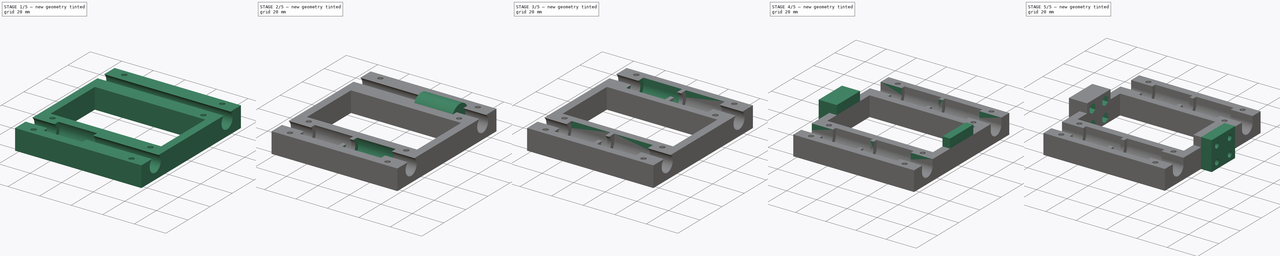
[diagram: build sequence overview — one tinted view per stage of 5, left to right]
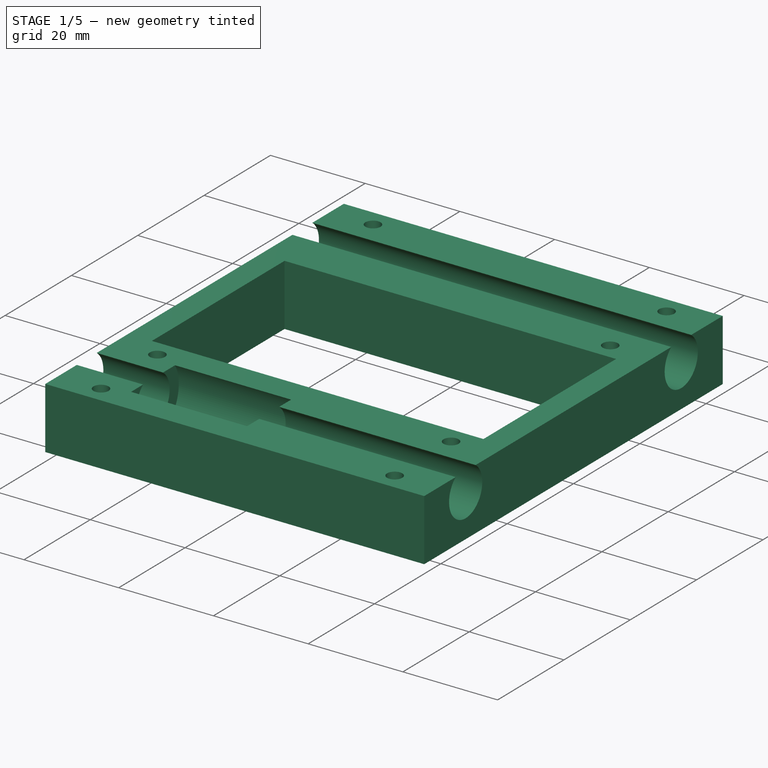
[diagram: stage 1 of 5 — iso view after this stage's code; geometry added in this stage tinted green]
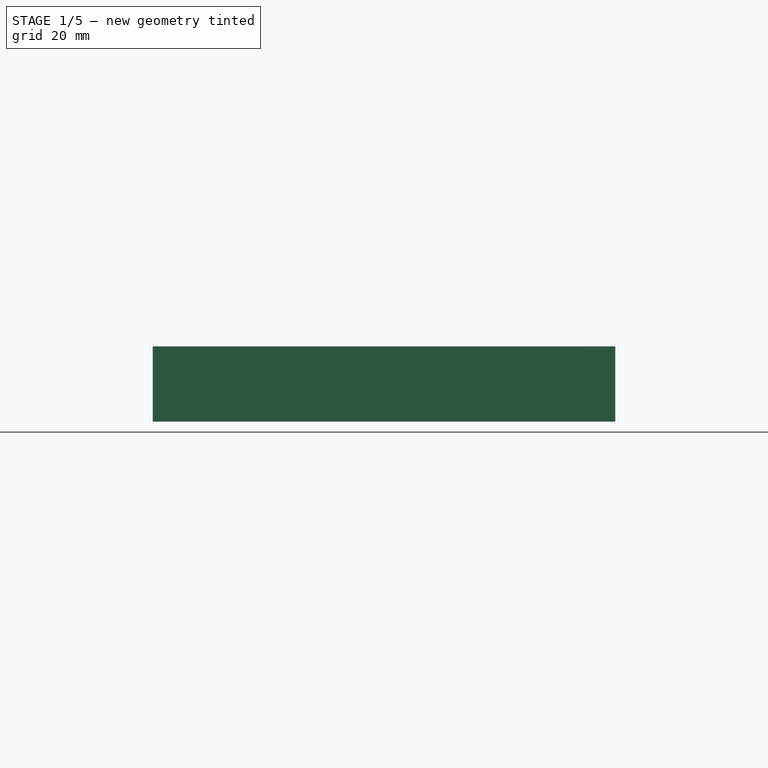
[diagram: stage 1 of 5 — front view after this stage's code; geometry added in this stage tinted green]
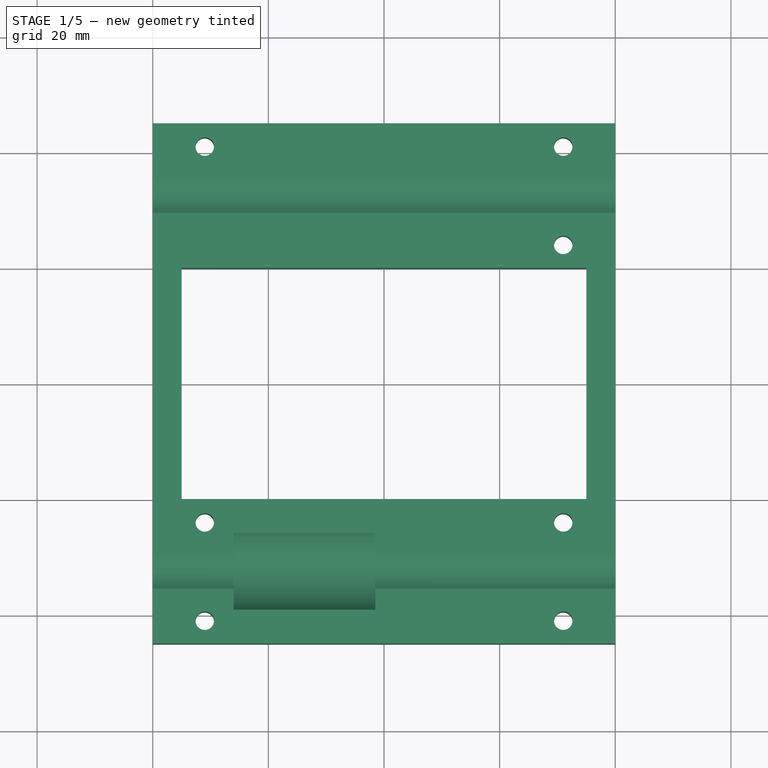
[diagram: stage 1 of 5 — top view after this stage's code; geometry added in this stage tinted green]
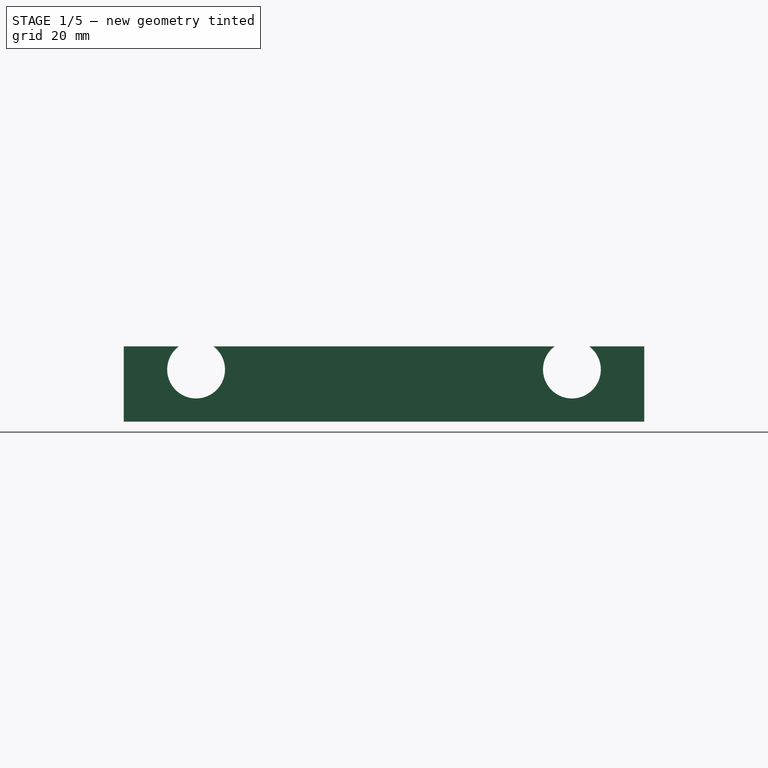
[diagram: stage 1 of 5 — right view after this stage's code; geometry added in this stage tinted green]
FCSTD DOCUMENT  (FreeCAD 0.15R4671 (Git))
Label: carriage-down
License: All rights reserved
LicenseURL: http://es.wikipedia.org/wiki/Todos_los_derechos_reservados
objects: Sketcher::SketchObject×10, PartDesign::Pocket×6, PartDesign::Pad×4, Part::Cylinder×4, Part::Cut×4, Part::Feature×3
note: 41 computed .brp shape members not serialized (recipe doc carries the construction recipe); baked Part::Feature solids carry a one-line shape summary decoded from their .brp

FEATURE [Sketcher::SketchObject] Sketch
  Placement = pos=(0,0,0) rot=(1,0,0;3.14159rad)
  sketch-geometry (17):
    g0: LineSegment StartX=-40 StartY=45 StartZ=0 EndX=40 EndY=45 EndZ=0
    g1: LineSegment StartX=40 StartY=45 StartZ=0 EndX=40 EndY=-45 EndZ=0
    g2: LineSegment StartX=40 StartY=-45 StartZ=0 EndX=-40 EndY=-45 EndZ=0
    g3: LineSegment StartX=-40 StartY=-45 StartZ=0 EndX=-40 EndY=45 EndZ=0
    g4: LineSegment StartX=35 StartY=20 StartZ=0 EndX=-35 EndY=20 EndZ=0
    g5: LineSegment StartX=-35 StartY=20 StartZ=0 EndX=-35 EndY=-20 EndZ=0
    g6: LineSegment StartX=-35 StartY=-20 StartZ=0 EndX=35 EndY=-20 EndZ=0
    g7: LineSegment StartX=35 StartY=-20 StartZ=0 EndX=35 EndY=20 EndZ=0
    g8: Circle CenterX=31 CenterY=-23.9512 CenterZ=0 NormalX=0 NormalY=0 NormalZ=1 Radius=1.6
    g9: Circle CenterX=31 CenterY=-40.9512 CenterZ=0 NormalX=0 NormalY=0 NormalZ=1 Radius=1.6
    g10: Circle CenterX=-31 CenterY=-40.9512 CenterZ=0 NormalX=0 NormalY=0 NormalZ=1 Radius=1.6
    g11: Circle CenterX=-31 CenterY=24.0488 CenterZ=0 NormalX=0 NormalY=0 NormalZ=1 Radius=1.6
    g12: Circle CenterX=-31 CenterY=41.0488 CenterZ=0 NormalX=0 NormalY=0 NormalZ=1 Radius=1.6
    g13: Circle CenterX=31 CenterY=41.0488 CenterZ=0 NormalX=0 NormalY=0 NormalZ=1 Radius=1.6
    g14: Circle CenterX=31 CenterY=24.0488 CenterZ=0 NormalX=0 NormalY=0 NormalZ=1 Radius=1.6
    g15: LineSegment [constr] StartX=31 StartY=-40.9512 StartZ=0 EndX=31 EndY=41.0488 EndZ=0
    g16: LineSegment [constr] StartX=-31 StartY=-41.2933 StartZ=0 EndX=-31 EndY=41.0055 EndZ=0
  constraints (42):
    c: Coincident(g0,g1)
    c: Coincident(g1,g2)
    c: Coincident(g2,g3)
    c: Coincident(g3,g0)
    c: Horizontal(g0)
    c: Horizontal(g2)
    c: Vertical(g1)
    c: Vertical(g3)
    c: Coincident(g4,g5)
    c: Coincident(g5,g6)
    c: Coincident(g6,g7)
    c: Coincident(g7,g4)
    c: Horizontal(g4)
    c: Horizontal(g6)
    c: Vertical(g5)
    c: Vertical(g7)
    c: Symmetric(g0,g1,g-1)
    c: DistanceX(g0) = 80
    c: Symmetric(g6,g4,g-1)
    c: Radius(g8) = 1.6
    c: Distance(g4,g4) = 70
    c: Equal(g8,g9)
    c: Equal(g9,g10)
    c: Equal(g10,g11)
    c: Equal(g11,g14)
    c: Equal(g14,g13)
    c: Equal(g13,g12)
    c: Distance(g10,g9) = 62
    c: Symmetric(g10,g9,g-2)
    c: Coincident(g15,g9)
    c: Coincident(g15,g13)
    c: Vertical(g15)
    c: PointOnObject(g8,g15)
    c: PointOnObject(g14,g15)
    c: PointOnObject(g12,g16)
    c: Symmetric(g11,g14,g-2)
    c: Distance(g14,g8) = 48
    c: Distance(g8,g9) = 17
    c: Distance(g14,g13) = 17
    c: Symmetric(g12,g13,g-2)
    c: Vertical(g16)
    c: DistanceY(g5) = -40
FEATURE [PartDesign::Pad] Pad
  Length = 13
  Length2 = 100
  Placement = pos=(0,0,0) rot=(1,0,0;3.14159rad)
  Sketch = -> Sketch
  Type = 0
FEATURE [Sketcher::SketchObject] Sketch001
  Placement = pos=(-40,0,0) rot=(0.57735,0.57735,-0.57735;4.18879rad)
  Support = -> Pad [Face4]
  sketch-geometry (2):
    g0: Circle CenterX=-32.5 CenterY=4 CenterZ=0 NormalX=0 NormalY=0 NormalZ=1 Radius=5
    g1: Circle CenterX=32.5 CenterY=4 CenterZ=0 NormalX=0 NormalY=0 NormalZ=1 Radius=5
  constraints (5):
    c: Equal(g0,g1)
    c: Radius(g0) = 5
    c: Distance(g0,g1) = 65
    c: Symmetric(g0,g1,g-2)
    c: DistanceY(g-1,g0) = 4
FEATURE [PartDesign::Pocket] Pocket
  Length = 5
  Placement = pos=(0,0,0) rot=(1,0,0;3.14159rad)
  Sketch = -> Sketch001
  Type = 1
FEATURE [Part::Cylinder] Cylinder  label="Cilindro"
  Angle = 360
  Height = 24.5
  Placement = pos=(-26,-32.5,-4) rot=(0,1,0;1.5708rad)
  Radius = 7.75
FEATURE [Part::Feature] Cut  label="carriage-sup"
  shape: bbox 70 x 90 x 3 mm, 67 faces (baked)
FEATURE [Part::Cut] Cut001
  Base = -> Pocket
  Tool = -> Cylinder
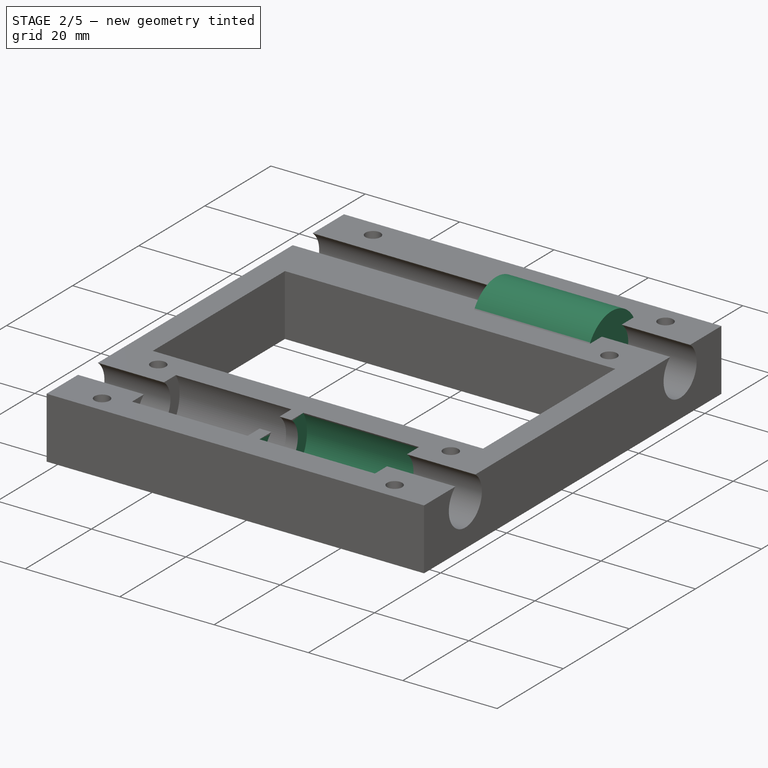
[diagram: stage 2 of 5 — iso view after this stage's code; geometry added in this stage tinted green]
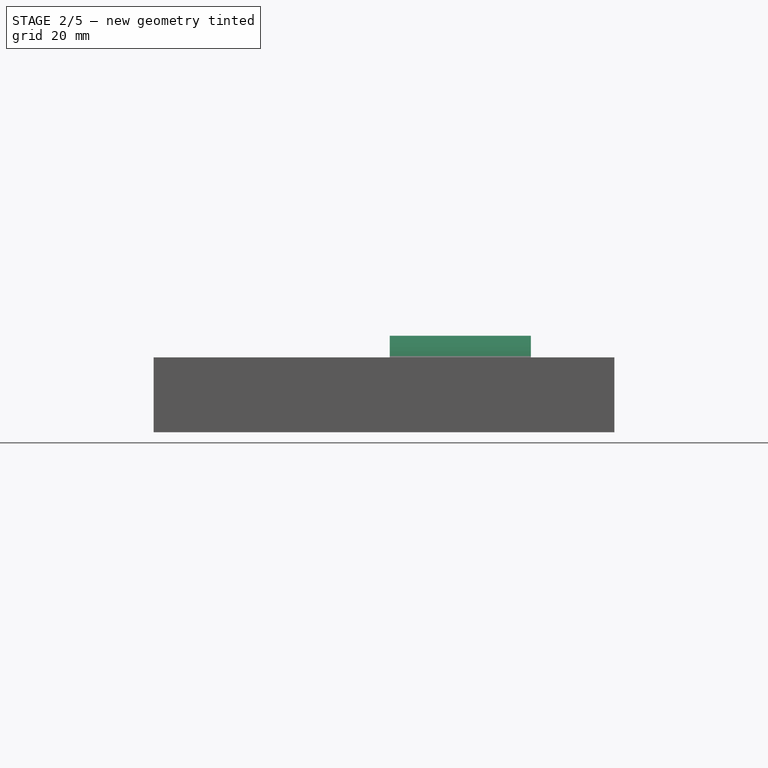
[diagram: stage 2 of 5 — front view after this stage's code; geometry added in this stage tinted green]
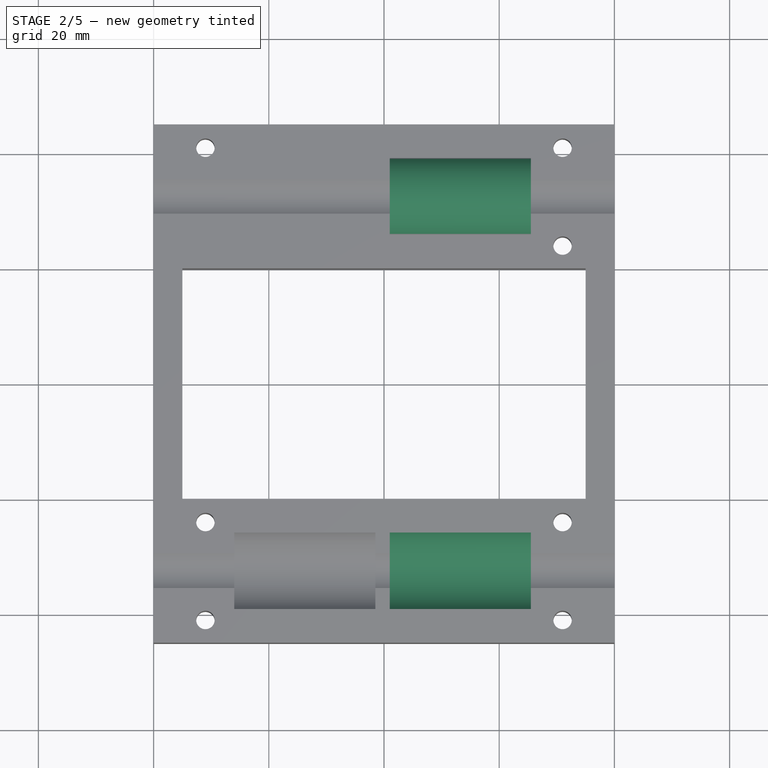
[diagram: stage 2 of 5 — top view after this stage's code; geometry added in this stage tinted green]
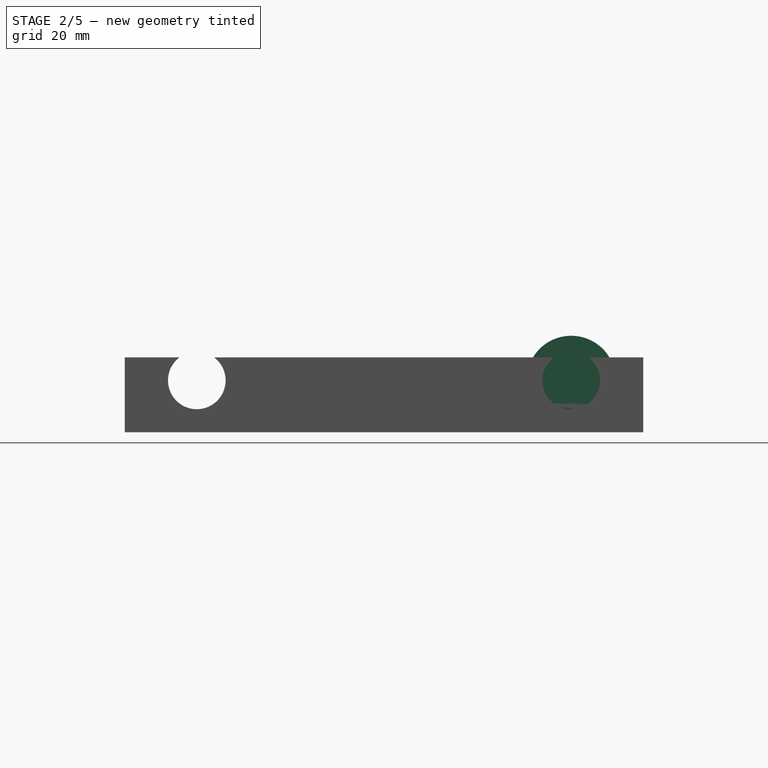
[diagram: stage 2 of 5 — right view after this stage's code; geometry added in this stage tinted green]
FEATURE [Part::Cylinder] Cylinder001  label="Cilindro001"
  Angle = 360
  Height = 24.5
  Placement = pos=(1,-32.5,-4) rot=(0,1,0;1.5708rad)
  Radius = 7.75
FEATURE [Part::Cylinder] Cylinder003  label="Cilindro003"
  Angle = 360
  Height = 24.5
  Placement = pos=(1,32.5,-4) rot=(0,1,0;1.5708rad)
  Radius = 7.75
FEATURE [Part::Cut] Cut002
  Base = -> Cut001
  Tool = -> Cylinder001
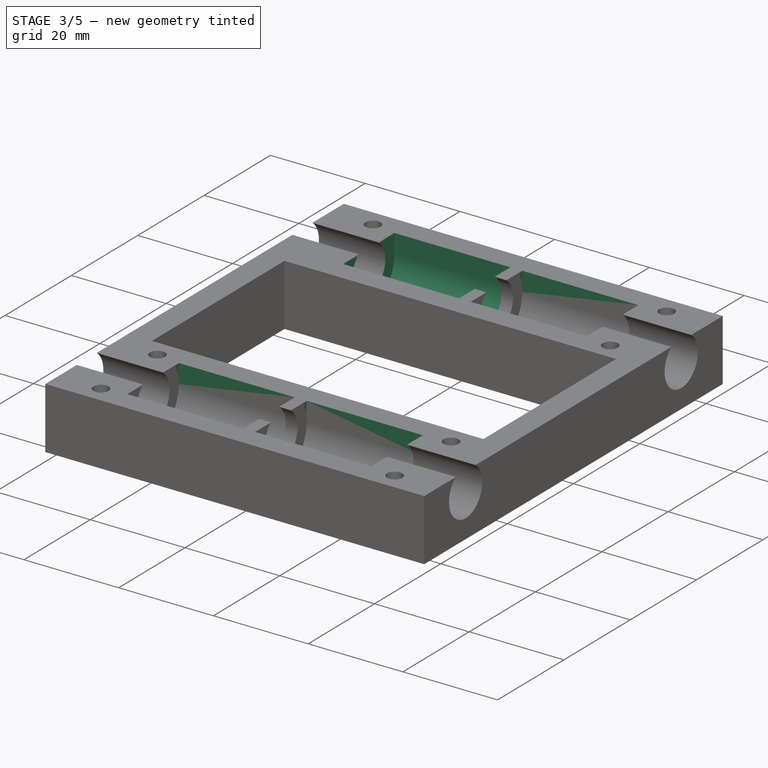
[diagram: stage 3 of 5 — iso view after this stage's code; geometry added in this stage tinted green]
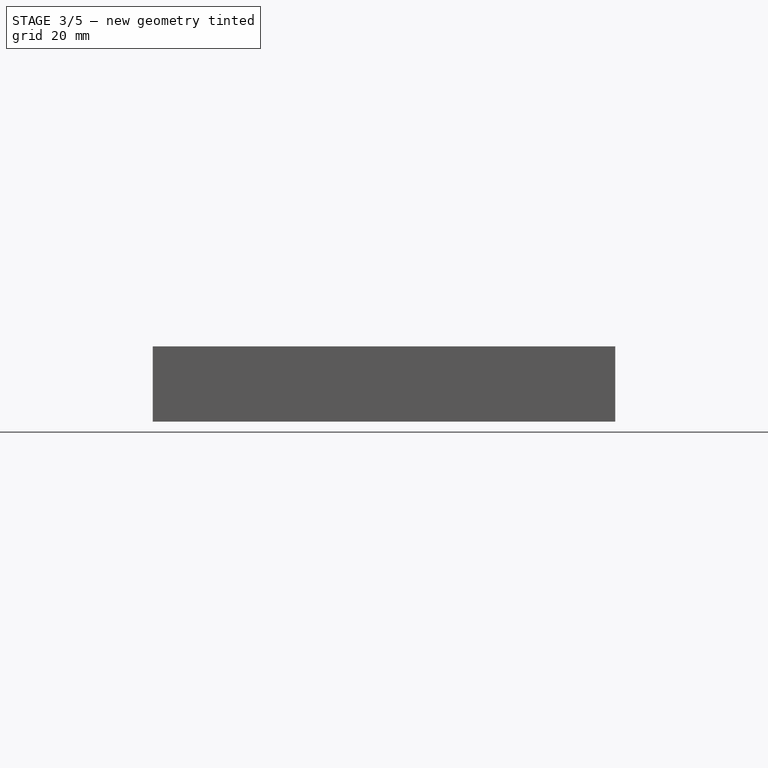
[diagram: stage 3 of 5 — front view after this stage's code; geometry added in this stage tinted green]
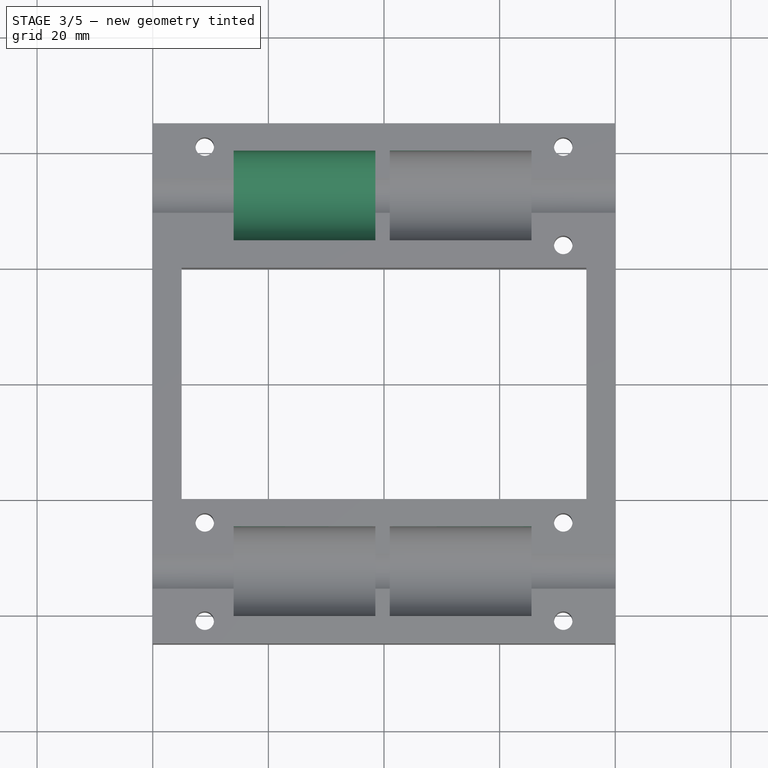
[diagram: stage 3 of 5 — top view after this stage's code; geometry added in this stage tinted green]
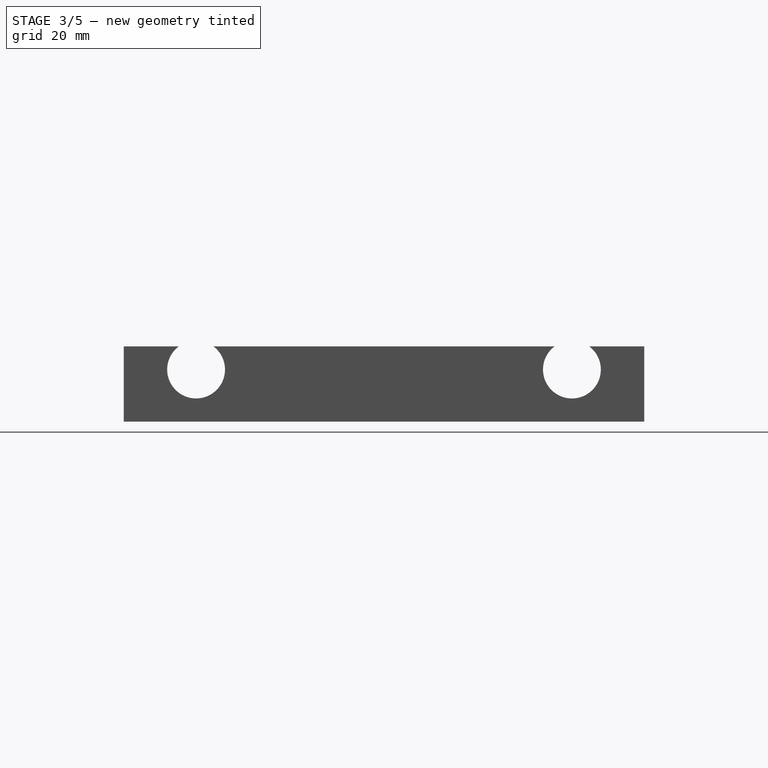
[diagram: stage 3 of 5 — right view after this stage's code; geometry added in this stage tinted green]
FEATURE [Part::Cylinder] Cylinder002  label="Cilindro002"
  Angle = 360
  Height = 24.5
  Placement = pos=(-26,32.5,-4) rot=(0,1,0;1.5708rad)
  Radius = 7.75
FEATURE [Part::Cut] Cut003
  Base = -> Cut002
  Tool = -> Cylinder003
FEATURE [Part::Cut] Cut004
  Base = -> Cut003
  Tool = -> Cylinder002
FEATURE [Sketcher::SketchObject] Sketch002
  ExternalGeometry = -> [Cut004]
  Support = -> Cut004 [Face9]
  sketch-geometry (16):
    g0: LineSegment StartX=-26 StartY=40.25 StartZ=0 EndX=-1.5 EndY=40.25 EndZ=0
    g1: LineSegment StartX=-1.5 StartY=40.25 StartZ=0 EndX=-1.5 EndY=24.75 EndZ=0
    g2: LineSegment StartX=-1.5 StartY=24.75 StartZ=0 EndX=-26 EndY=24.75 EndZ=0
    g3: LineSegment StartX=-26 StartY=24.75 StartZ=0 EndX=-26 EndY=40.25 EndZ=0
    g4: LineSegment StartX=1 StartY=40.25 StartZ=0 EndX=25.5 EndY=40.25 EndZ=0
    g5: LineSegment StartX=25.5 StartY=40.25 StartZ=0 EndX=25.5 EndY=24.75 EndZ=0
    g6: LineSegment StartX=25.5 StartY=24.75 StartZ=0 EndX=1 EndY=24.75 EndZ=0
    g7: LineSegment StartX=1 StartY=24.75 StartZ=0 EndX=1 EndY=40.25 EndZ=0
    g8: LineSegment StartX=-26 StartY=-24.75 StartZ=0 EndX=-1.5 EndY=-24.75 EndZ=0
    g9: LineSegment StartX=-1.5 StartY=-24.75 StartZ=0 EndX=-1.5 EndY=-40.25 EndZ=0
    g10: LineSegment StartX=-1.5 StartY=-40.25 StartZ=0 EndX=-26 EndY=-40.25 EndZ=0
    g11: LineSegment StartX=-26 StartY=-40.25 StartZ=0 EndX=-26 EndY=-24.75 EndZ=0
    g12: LineSegment StartX=1 StartY=-24.75 StartZ=0 EndX=25.5 EndY=-24.75 EndZ=0
    g13: LineSegment StartX=25.5 StartY=-24.75 StartZ=0 EndX=25.5 EndY=-40.25 EndZ=0
    g14: LineSegment StartX=25.5 StartY=-40.25 StartZ=0 EndX=1 EndY=-40.25 EndZ=0
    g15: LineSegment StartX=1 StartY=-40.25 StartZ=0 EndX=1 EndY=-24.75 EndZ=0
  constraints (44):
    c: Coincident(g0,g1)
    c: Coincident(g1,g2)
    c: Coincident(g2,g3)
    c: Coincident(g3,g0)
    c: Horizontal(g0)
    c: Horizontal(g2)
    c: Vertical(g1)
    c: Vertical(g3)
    c: DistanceY(g3) = 15.5
    c: Symmetric(g0,g2,g-3)
    c: DistanceX(g0) = 24.5
    c: Coincident(g4,g5)
    c: Coincident(g5,g6)
    c: Coincident(g6,g7)
    c: Coincident(g7,g4)
    c: Horizontal(g4)
    c: Horizontal(g6)
    c: Vertical(g5)
    c: Vertical(g7)
    c: Coincident(g8,g9)
    c: Coincident(g9,g10)
    c: Coincident(g10,g11)
    c: Coincident(g11,g8)
    c: Horizontal(g8)
    c: Horizontal(g10)
    c: Vertical(g9)
    c: Vertical(g11)
    c: Coincident(g12,g13)
    c: Coincident(g13,g14)
    c: Coincident(g14,g15)
    c: Coincident(g15,g12)
    c: Horizontal(g12)
    c: Horizontal(g14)
    c: Vertical(g13)
    c: Vertical(g15)
    c: Equal(g0,g4)
    c: Equal(g4,g8)
    c: Equal(g8,g12)
    c: Equal(g1,g7)
    c: Equal(g7,g9)
    c: Equal(g9,g15)
    c: Symmetric(g8,g10,g-5)
    c: Symmetric(g12,g14,g-6)
    c: Symmetric(g4,g6,g-4)
FEATURE [PartDesign::Pocket] Pocket001
  Length = 4
  Sketch = -> Sketch002
  Type = 0
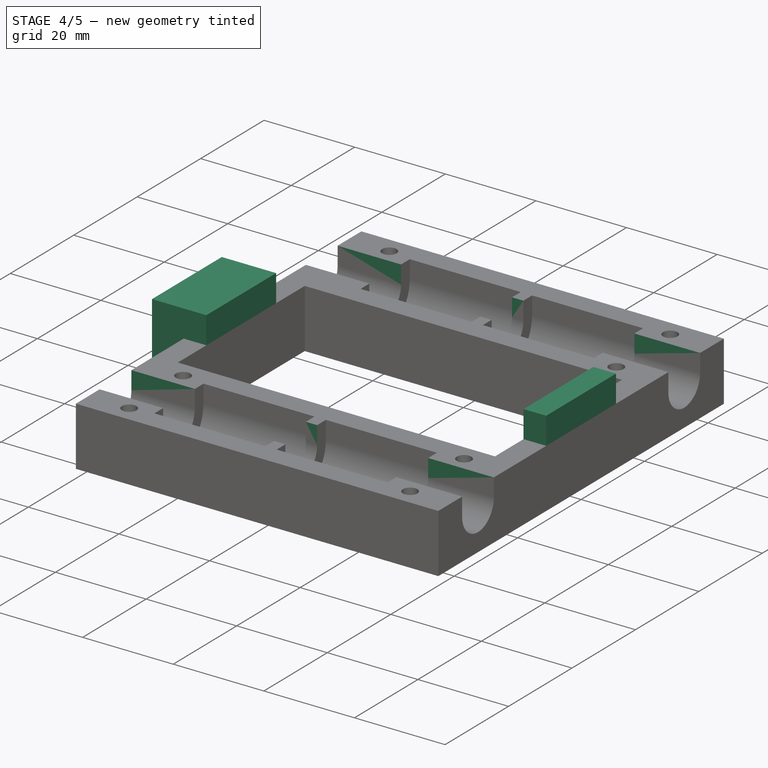
[diagram: stage 4 of 5 — iso view after this stage's code; geometry added in this stage tinted green]
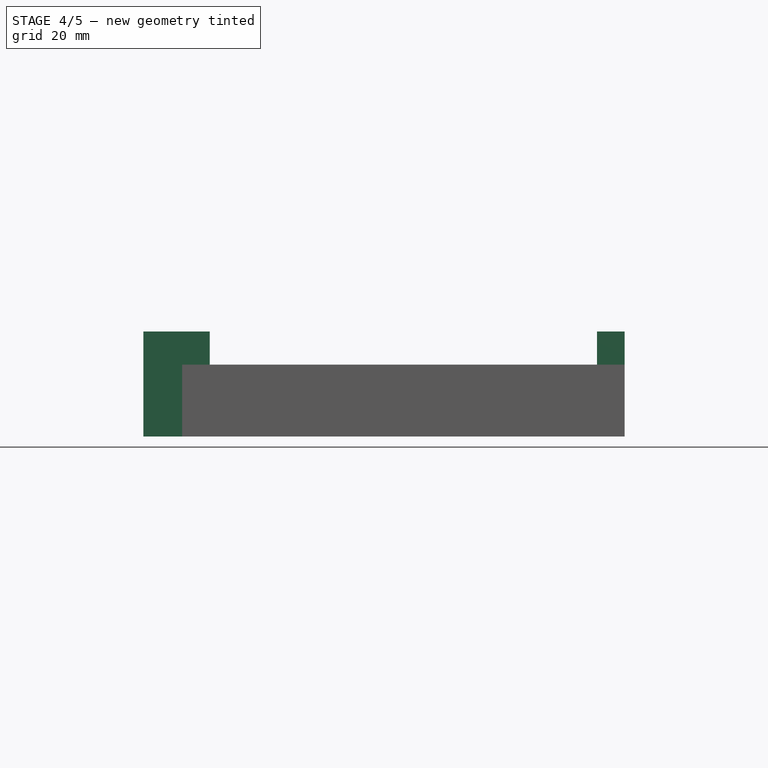
[diagram: stage 4 of 5 — front view after this stage's code; geometry added in this stage tinted green]
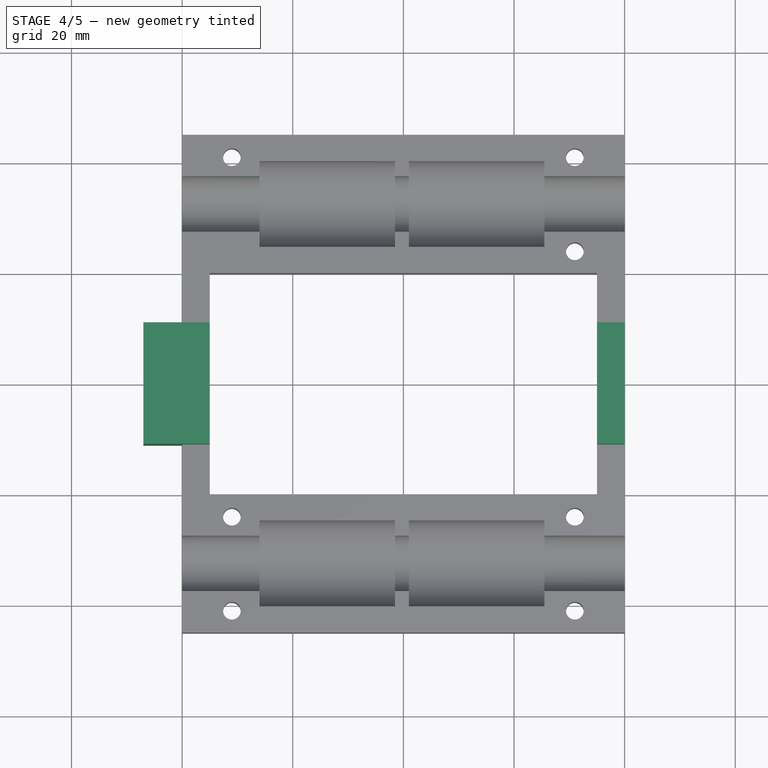
[diagram: stage 4 of 5 — top view after this stage's code; geometry added in this stage tinted green]
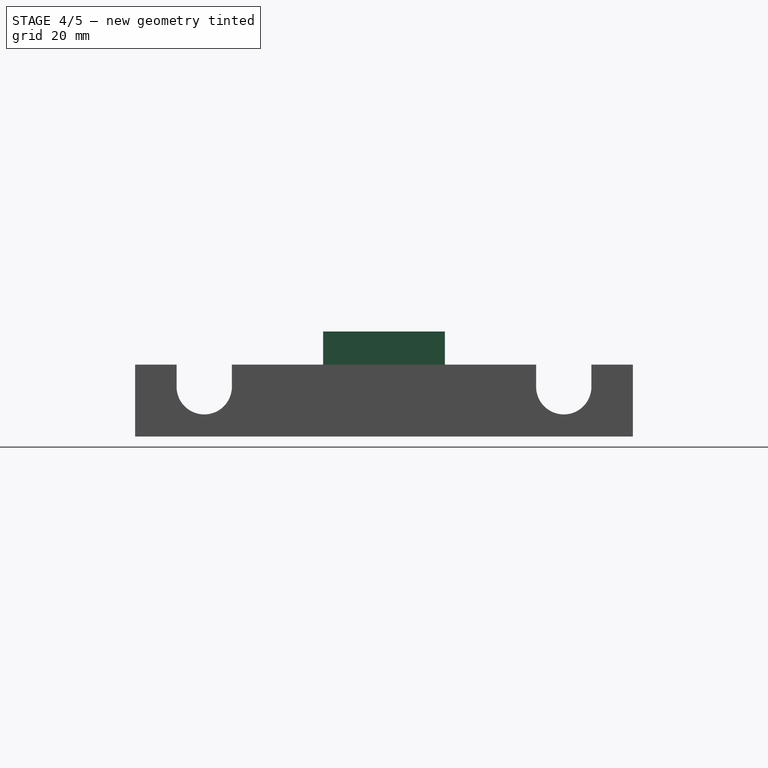
[diagram: stage 4 of 5 — right view after this stage's code; geometry added in this stage tinted green]
FEATURE [Sketcher::SketchObject] Sketch003
  ExternalGeometry = -> [Pocket001]
  Support = -> Pocket001 [Face9]
  sketch-geometry (10):
    g0: LineSegment [constr] StartX=-26 StartY=32.5 StartZ=0 EndX=-40 EndY=32.5 EndZ=0
    g1: LineSegment [constr] StartX=-26 StartY=-32.5 StartZ=0 EndX=-40 EndY=-32.5 EndZ=0
    g2: LineSegment StartX=-40 StartY=37.5 StartZ=0 EndX=40 EndY=37.5 EndZ=0
    g3: LineSegment StartX=40 StartY=37.5 StartZ=0 EndX=40 EndY=27.5 EndZ=0
    g4: LineSegment StartX=40 StartY=27.5 StartZ=0 EndX=-40 EndY=27.5 EndZ=0
    g5: LineSegment StartX=-40 StartY=27.5 StartZ=0 EndX=-40 EndY=37.5 EndZ=0
    g6: LineSegment StartX=-40 StartY=-27.5 StartZ=0 EndX=40 EndY=-27.5 EndZ=0
    g7: LineSegment StartX=40 StartY=-27.5 StartZ=0 EndX=40 EndY=-37.5 EndZ=0
    g8: LineSegment StartX=40 StartY=-37.5 StartZ=0 EndX=-40 EndY=-37.5 EndZ=0
    g9: LineSegment StartX=-40 StartY=-37.5 StartZ=0 EndX=-40 EndY=-27.5 EndZ=0
  constraints (26):
    c: Coincident(g0,g-3)
    c: Horizontal(g0)
    c: Horizontal(g1)
    c: PointOnObject(g-4,g1)
    c: Coincident(g2,g3)
    c: Coincident(g3,g4)
    c: Coincident(g4,g5)
    c: Coincident(g5,g2)
    c: Horizontal(g2)
    c: Horizontal(g4)
    c: Vertical(g3)
    c: Vertical(g5)
    c: Coincident(g6,g7)
    c: Coincident(g7,g8)
    c: Coincident(g8,g9)
    c: Coincident(g9,g6)
    c: Horizontal(g6)
    c: Horizontal(g8)
    c: Vertical(g7)
    c: Vertical(g9)
    c: Symmetric(g4,g2,g0)
    c: DistanceY(g5) = 10
    c: DistanceX(g2) = 80
    c: Equal(g4,g6)
    c: Equal(g3,g7)
    c: Symmetric(g6,g8,g1)
FEATURE [PartDesign::Pocket] Pocket002
  Length = 4
  Sketch = -> Sketch003
  Type = 0
FEATURE [Part::Feature] Part__Feature  label="belt-clamp"
  Placement = pos=(-17,0.00078681,155) rot=(1,0,0;3.14159rad)
  shape: bbox 15 x 22 x 10 mm, 58 faces (baked)
FEATURE [Part::Feature] Part__Feature001  label="belt-clamp001"
  Placement = pos=(-17,-0.00078681,-163) rot=(0,0,1;0rad)
  shape: bbox 15 x 22 x 10 mm, 58 faces (baked)
FEATURE [Sketcher::SketchObject] Sketch004
  ExternalGeometry = -> [Pocket002]
  Support = -> Pocket002 [Face10]
  sketch-geometry (8):
    g0: LineSegment StartX=-40 StartY=10.9964 StartZ=0 EndX=-35 EndY=10.9964 EndZ=0
    g1: LineSegment StartX=-35 StartY=10.9964 StartZ=0 EndX=-35 EndY=-11 EndZ=0
    g2: LineSegment StartX=-35 StartY=-11 StartZ=0 EndX=-40 EndY=-11 EndZ=0
    g3: LineSegment StartX=-40 StartY=-11 StartZ=0 EndX=-40 EndY=10.9964 EndZ=0
    g4: LineSegment StartX=35 StartY=10.9964 StartZ=0 EndX=40 EndY=10.9964 EndZ=0
    g5: LineSegment StartX=40 StartY=10.9964 StartZ=0 EndX=40 EndY=-11 EndZ=0
    g6: LineSegment StartX=40 StartY=-11 StartZ=0 EndX=35 EndY=-11 EndZ=0
    g7: LineSegment StartX=35 StartY=-11 StartZ=0 EndX=35 EndY=10.9964 EndZ=0
  constraints (21):
    c: Coincident(g0,g1)
    c: Coincident(g1,g2)
    c: Coincident(g2,g3)
    c: Coincident(g3,g0)
    c: Horizontal(g0)
    c: Horizontal(g2)
    c: Vertical(g1)
    c: Vertical(g3)
    c: PointOnObject(g0,g-4)
    c: PointOnObject(g1,g-3)
    c: Coincident(g4,g5)
    c: Coincident(g5,g6)
    c: Coincident(g6,g7)
    c: Coincident(g7,g4)
    c: Horizontal(g4)
    c: Horizontal(g6)
    c: Vertical(g5)
    c: Vertical(g7)
    c: PointOnObject(g5,g-6)
    c: Symmetric(g0,g4,g-2)
    c: Symmetric(g6,g1,g-2)
FEATURE [PartDesign::Pad] Pad001
  Length = 6
  Length2 = 100
  Sketch = -> Sketch004
  Type = 0
FEATURE [Sketcher::SketchObject] Sketch005
  ExternalGeometry = -> [Pad001]
  Placement = pos=(-40,0,0) rot=(0.57735,-0.57735,-0.57735;2.0944rad)
  Support = -> Pad001 [Face2]
  sketch-geometry (4):
    g0: LineSegment StartX=11 StartY=6 StartZ=0 EndX=-10.9964 EndY=6 EndZ=0
    g1: LineSegment StartX=-10.9964 StartY=6 StartZ=0 EndX=-10.9964 EndY=-13 EndZ=0
    g2: LineSegment StartX=-10.9964 StartY=-13 StartZ=0 EndX=11 EndY=-13 EndZ=0
    g3: LineSegment StartX=11 StartY=-13 StartZ=0 EndX=11 EndY=6 EndZ=0
  constraints (10):
    c: Coincident(g0,g1)
    c: Coincident(g1,g2)
    c: Coincident(g2,g3)
    c: Coincident(g3,g0)
    c: Horizontal(g0)
    c: Horizontal(g2)
    c: Vertical(g1)
    c: Vertical(g3)
    c: Coincident(g0,g-4)
    c: Coincident(g0,g-4)
FEATURE [PartDesign::Pad] Pad002
  Length = 7
  Length2 = 100
  Sketch = -> Sketch005
  Type = 0
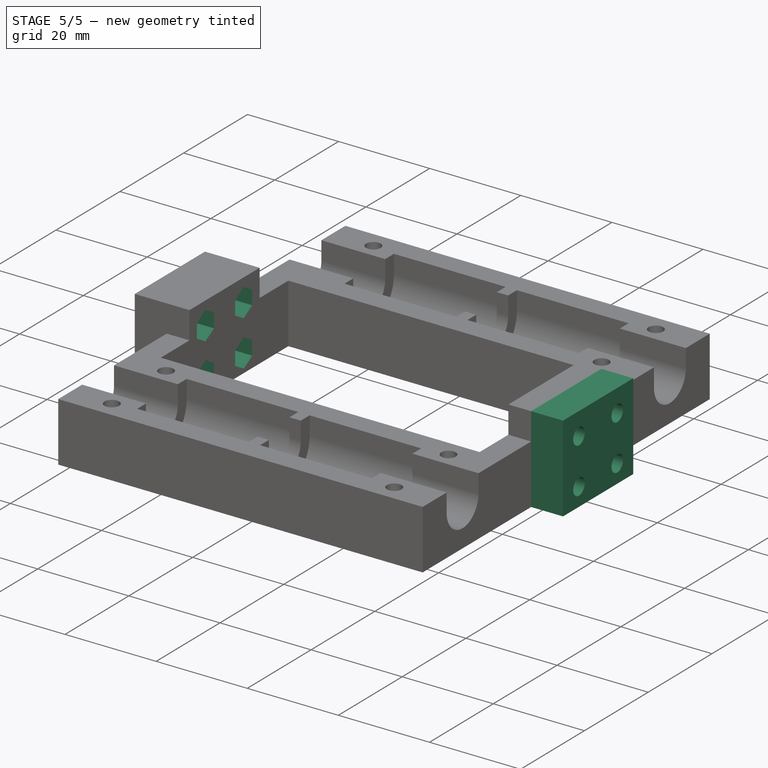
[diagram: stage 5 of 5 — iso view after this stage's code; geometry added in this stage tinted green]
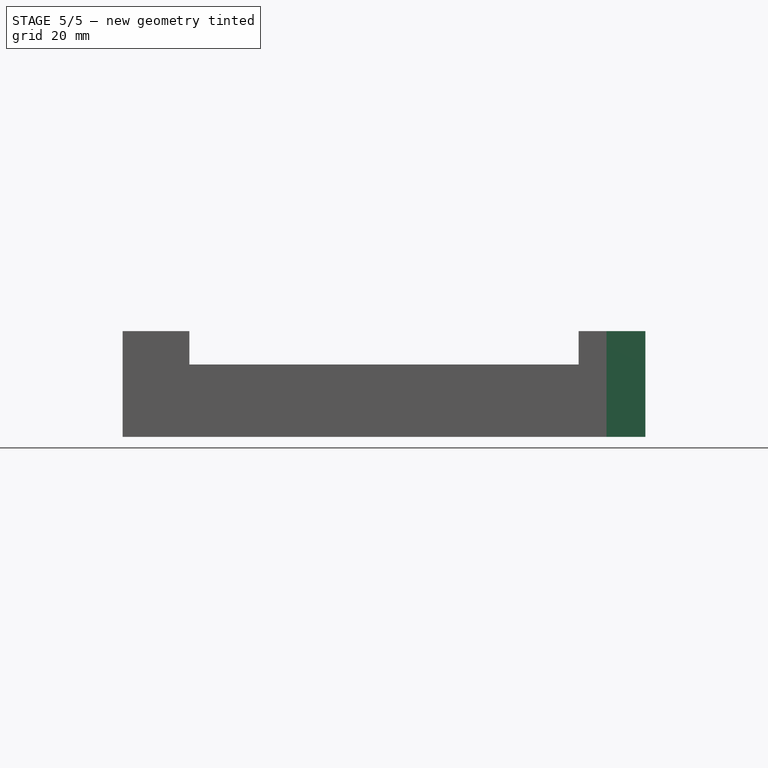
[diagram: stage 5 of 5 — front view after this stage's code; geometry added in this stage tinted green]
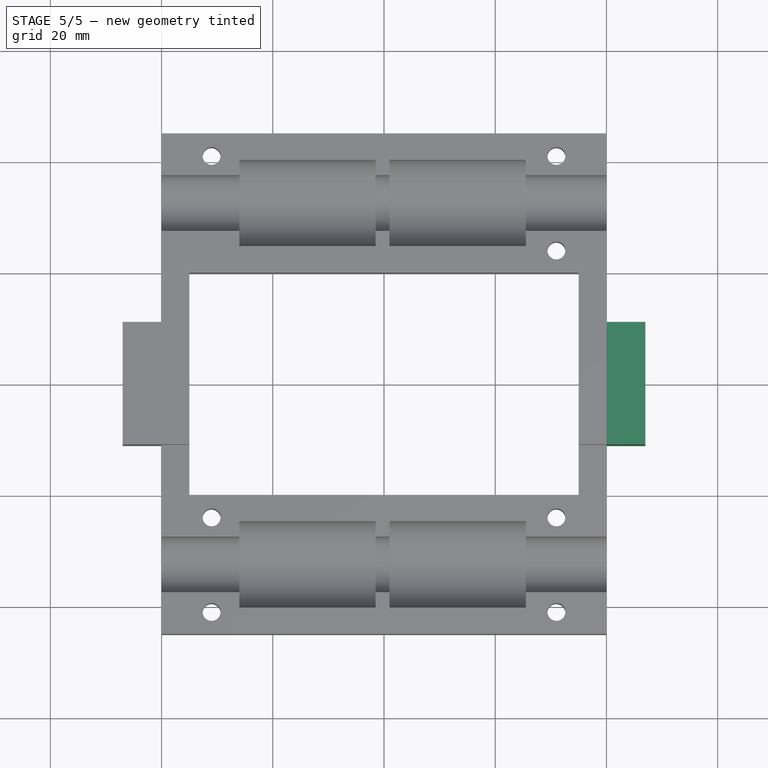
[diagram: stage 5 of 5 — top view after this stage's code; geometry added in this stage tinted green]
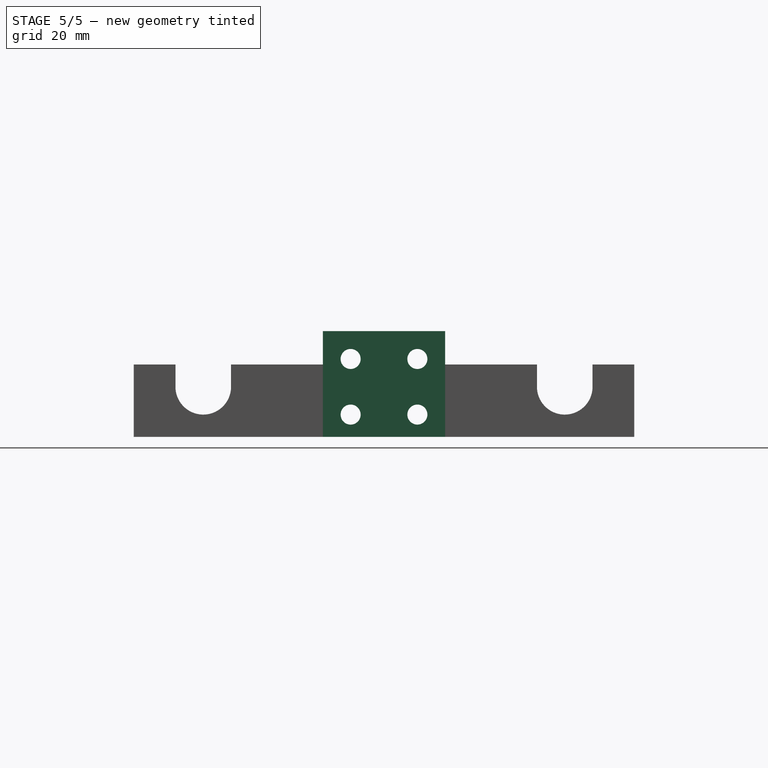
[diagram: stage 5 of 5 — right view after this stage's code; geometry added in this stage tinted green]
FEATURE [Sketcher::SketchObject] Sketch006
  ExternalGeometry = -> [Pad002]
  Placement = pos=(40,0,0) rot=(0.57735,0.57735,0.57735;2.0944rad)
  Support = -> Pad002 [Face3]
  sketch-geometry (4):
    g0: LineSegment StartX=-11 StartY=6 StartZ=0 EndX=11 EndY=6 EndZ=0
    g1: LineSegment StartX=11 StartY=6 StartZ=0 EndX=11 EndY=-13 EndZ=0
    g2: LineSegment StartX=11 StartY=-13 StartZ=0 EndX=-11 EndY=-13 EndZ=0
    g3: LineSegment StartX=-11 StartY=-13 StartZ=0 EndX=-11 EndY=6 EndZ=0
  constraints (10):
    c: Coincident(g0,g1)
    c: Coincident(g1,g2)
    c: Coincident(g2,g3)
    c: Coincident(g3,g0)
    c: Horizontal(g0)
    c: Horizontal(g2)
    c: Vertical(g1)
    c: Vertical(g3)
    c: Coincident(g0,g-3)
    c: PointOnObject(g1,g-4)
FEATURE [PartDesign::Pad] Pad003
  Length = 7
  Length2 = 100
  Sketch = -> Sketch006
  Type = 0
FEATURE [Sketcher::SketchObject] Sketch007
  Placement = pos=(-47,0,0) rot=(0.57735,-0.57735,-0.57735;2.0944rad)
  Support = -> Pad003 [Face42]
  sketch-geometry (4):
    g0: Circle CenterX=-6 CenterY=1 CenterZ=0 NormalX=0 NormalY=0 NormalZ=1 Radius=1.8
    g1: Circle CenterX=-6 CenterY=-9 CenterZ=0 NormalX=0 NormalY=0 NormalZ=1 Radius=1.8
    g2: Circle CenterX=6 CenterY=-9 CenterZ=0 NormalX=0 NormalY=0 NormalZ=1 Radius=1.8
    g3: Circle CenterX=6 CenterY=1 CenterZ=0 NormalX=0 NormalY=0 NormalZ=1 Radius=1.8
  constraints (10):
    c: Radius(g1) = 1.8
    c: Equal(g1,g0)
    c: Equal(g0,g3)
    c: Equal(g3,g2)
    c: Symmetric(g1,g2,g-2)
    c: Symmetric(g0,g3,g-2)
    c: DistanceY(g-1,g0) = 1
    c: DistanceX(g-2,g0) = -6
    c: DistanceX(g-2,g1) = -6
    c: DistanceY(g-1,g1) = -9
FEATURE [PartDesign::Pocket] Pocket003
  Length = 5
  Sketch = -> Sketch007
  Type = 1
FEATURE [Sketcher::SketchObject] Sketch008
  Placement = pos=(-35,0,0) rot=(0.57735,0.57735,0.57735;2.0944rad)
  Support = -> Pocket003 [Face40]
  sketch-geometry (28):
    g0: LineSegment StartX=-6 StartY=4.1 StartZ=0 EndX=-8.68468 EndY=2.55 EndZ=0
    g1: LineSegment StartX=-8.68468 StartY=2.55 StartZ=0 EndX=-8.68468 EndY=-0.55 EndZ=0
    g2: LineSegment StartX=-8.68468 StartY=-0.55 StartZ=0 EndX=-6 EndY=-2.1 EndZ=0
    g3: LineSegment StartX=-6 StartY=-2.1 StartZ=0 EndX=-3.31532 EndY=-0.55 EndZ=0
    g4: LineSegment StartX=-3.31532 StartY=-0.55 StartZ=0 EndX=-3.31532 EndY=2.55 EndZ=0
    g5: LineSegment StartX=-3.31532 StartY=2.55 StartZ=0 EndX=-6 EndY=4.1 EndZ=0
    g6: Circle [constr] CenterX=-6 CenterY=1 CenterZ=0 NormalX=0 NormalY=0 NormalZ=1 Radius=3.1
    g7: LineSegment StartX=-6 StartY=-5.9 StartZ=0 EndX=-8.68468 EndY=-7.45 EndZ=0
    g8: LineSegment StartX=-8.68468 StartY=-7.45 StartZ=0 EndX=-8.68468 EndY=-10.55 EndZ=0
    g9: LineSegment StartX=-8.68468 StartY=-10.55 StartZ=0 EndX=-6 EndY=-12.1 EndZ=0
    g10: LineSegment StartX=-6 StartY=-12.1 StartZ=0 EndX=-3.31532 EndY=-10.55 EndZ=0
    g11: LineSegment StartX=-3.31532 StartY=-10.55 StartZ=0 EndX=-3.31532 EndY=-7.45 EndZ=0
    g12: LineSegment StartX=-3.31532 StartY=-7.45 StartZ=0 EndX=-6 EndY=-5.9 EndZ=0
    g13: Circle [constr] CenterX=-6 CenterY=-9 CenterZ=0 NormalX=0 NormalY=0 NormalZ=1 Radius=3.1
    g14: LineSegment StartX=6 StartY=-5.9 StartZ=0 EndX=3.31532 EndY=-7.45 EndZ=0
    g15: LineSegment StartX=3.31532 StartY=-7.45 StartZ=0 EndX=3.31532 EndY=-10.55 EndZ=0
    g16: LineSegment StartX=3.31532 StartY=-10.55 StartZ=0 EndX=6 EndY=-12.1 EndZ=0
    g17: LineSegment StartX=6 StartY=-12.1 StartZ=0 EndX=8.68468 EndY=-10.55 EndZ=0
    g18: LineSegment StartX=8.68468 StartY=-10.55 StartZ=0 EndX=8.68468 EndY=-7.45 EndZ=0
    g19: LineSegment StartX=8.68468 StartY=-7.45 StartZ=0 EndX=6 EndY=-5.9 EndZ=0
    g20: Circle [constr] CenterX=6 CenterY=-9 CenterZ=0 NormalX=0 NormalY=0 NormalZ=1 Radius=3.1
    g21: LineSegment StartX=6 StartY=4.1 StartZ=0 EndX=3.31532 EndY=2.55 EndZ=0
    g22: LineSegment StartX=3.31532 StartY=2.55 StartZ=0 EndX=3.31532 EndY=-0.55 EndZ=0
    g23: LineSegment StartX=3.31532 StartY=-0.55 StartZ=0 EndX=6 EndY=-2.1 EndZ=0
    g24: LineSegment StartX=6 StartY=-2.1 StartZ=0 EndX=8.68468 EndY=-0.55 EndZ=0
    g25: LineSegment StartX=8.68468 StartY=-0.55 StartZ=0 EndX=8.68468 EndY=2.55 EndZ=0
    g26: LineSegment StartX=8.68468 StartY=2.55 StartZ=0 EndX=6 EndY=4.1 EndZ=0
    g27: Circle [constr] CenterX=6 CenterY=1 CenterZ=0 NormalX=0 NormalY=0 NormalZ=1 Radius=3.1
  constraints (66):
    c: Coincident(g0,g1)
    c: Coincident(g1,g2)
    c: Coincident(g2,g3)
    c: Coincident(g3,g4)
    c: Coincident(g4,g5)
    c: Coincident(g5,g0)
    c: Equal(g0, g1-g5) x5
    c: PointOnObject(g0,g6)
    c: PointOnObject(g1,g6)
    c: PointOnObject(g2,g6)
    c: PointOnObject(g3,g6)
    c: PointOnObject(g4,g6)
    c: PointOnObject(g5,g6)
    c: Vertical(g4)
    c: Coincident(g7,g8)
    c: Coincident(g8,g9)
    c: Coincident(g9,g10)
    c: Coincident(g10,g11)
    c: Coincident(g11,g12)
    c: Coincident(g12,g7)
    c: Equal(g7, g8-g12) x5
    c: PointOnObject(g7,g13)
    c: PointOnObject(g8,g13)
    c: PointOnObject(g9,g13)
    c: PointOnObject(g10,g13)
    c: PointOnObject(g11,g13)
    c: PointOnObject(g12,g13)
    c: Vertical(g11)
    c: Coincident(g14,g15)
    c: Coincident(g15,g16)
    c: Coincident(g16,g17)
    c: Coincident(g17,g18)
    c: Coincident(g18,g19)
    c: Coincident(g19,g14)
    c: Equal(g14, g15-g19) x5
    c: PointOnObject(g14,g20)
    c: PointOnObject(g15,g20)
    c: PointOnObject(g16,g20)
    c: PointOnObject(g17,g20)
    c: PointOnObject(g18,g20)
    c: PointOnObject(g19,g20)
    c: Vertical(g18)
    c: Coincident(g21,g22)
    c: Coincident(g22,g23)
    c: Coincident(g23,g24)
    c: Coincident(g24,g25)
    c: Coincident(g25,g26)
    c: Coincident(g26,g21)
    c: Equal(g21, g22-g26) x5
    c: PointOnObject(g21,g27)
    c: PointOnObject(g22,g27)
    c: PointOnObject(g23,g27)
    c: PointOnObject(g24,g27)
    c: PointOnObject(g25,g27)
    c: PointOnObject(g26,g27)
    c: Vertical(g25)
    c: Distance(g6,g0) = 3.1
    c: Distance(g27,g21) = 3.1
    c: DistanceX(g-2,g27) = 6
    c: Symmetric(g6,g27,g-2)
    c: DistanceY(g-1,g27) = 1
    c: Distance(g13,g7) = 3.1
    c: Symmetric(g13,g20,g-2)
    c: Distance(g20,g14) = 3.1
    c: DistanceX(g-2,g13) = -6
    c: DistanceY(g-1,g13) = -9
FEATURE [PartDesign::Pocket] Pocket004
  Length = 5
  Sketch = -> Sketch008
  Type = 0
FEATURE [Sketcher::SketchObject] Sketch009
  Placement = pos=(35,0,0) rot=(0.57735,-0.57735,-0.57735;2.0944rad)
  Support = -> Pocket004 [Face39]
  sketch-geometry (28):
    g0: LineSegment StartX=-6 StartY=4.1 StartZ=0 EndX=-8.68468 EndY=2.55 EndZ=0
    g1: LineSegment StartX=-8.68468 StartY=2.55 StartZ=0 EndX=-8.68468 EndY=-0.55 EndZ=0
    g2: LineSegment StartX=-8.68468 StartY=-0.55 StartZ=0 EndX=-6 EndY=-2.1 EndZ=0
    g3: LineSegment StartX=-6 StartY=-2.1 StartZ=0 EndX=-3.31532 EndY=-0.55 EndZ=0
    g4: LineSegment StartX=-3.31532 StartY=-0.55 StartZ=0 EndX=-3.31532 EndY=2.55 EndZ=0
    g5: LineSegment StartX=-3.31532 StartY=2.55 StartZ=0 EndX=-6 EndY=4.1 EndZ=0
    g6: Circle [constr] CenterX=-6 CenterY=1 CenterZ=0 NormalX=0 NormalY=0 NormalZ=1 Radius=3.1
    g7: LineSegment StartX=-6 StartY=-5.9 StartZ=0 EndX=-8.68468 EndY=-7.45 EndZ=0
    g8: LineSegment StartX=-8.68468 StartY=-7.45 StartZ=0 EndX=-8.68468 EndY=-10.55 EndZ=0
    g9: LineSegment StartX=-8.68468 StartY=-10.55 StartZ=0 EndX=-6 EndY=-12.1 EndZ=0
    g10: LineSegment StartX=-6 StartY=-12.1 StartZ=0 EndX=-3.31532 EndY=-10.55 EndZ=0
    g11: LineSegment StartX=-3.31532 StartY=-10.55 StartZ=0 EndX=-3.31532 EndY=-7.45 EndZ=0
    g12: LineSegment StartX=-3.31532 StartY=-7.45 StartZ=0 EndX=-6 EndY=-5.9 EndZ=0
    g13: Circle [constr] CenterX=-6 CenterY=-9 CenterZ=0 NormalX=0 NormalY=0 NormalZ=1 Radius=3.1
    g14: LineSegment StartX=6 StartY=4.1 StartZ=0 EndX=3.31532 EndY=2.55 EndZ=0
    g15: LineSegment StartX=3.31532 StartY=2.55 StartZ=0 EndX=3.31532 EndY=-0.55 EndZ=0
    g16: LineSegment StartX=3.31532 StartY=-0.55 StartZ=0 EndX=6 EndY=-2.1 EndZ=0
    g17: LineSegment StartX=6 StartY=-2.1 StartZ=0 EndX=8.68468 EndY=-0.55 EndZ=0
    g18: LineSegment StartX=8.68468 StartY=-0.55 StartZ=0 EndX=8.68468 EndY=2.55 EndZ=0
    g19: LineSegment StartX=8.68468 StartY=2.55 StartZ=0 EndX=6 EndY=4.1 EndZ=0
    g20: Circle [constr] CenterX=6 CenterY=1 CenterZ=0 NormalX=0 NormalY=0 NormalZ=1 Radius=3.1
    g21: LineSegment StartX=6 StartY=-5.9 StartZ=0 EndX=3.31532 EndY=-7.45 EndZ=0
    g22: LineSegment StartX=3.31532 StartY=-7.45 StartZ=0 EndX=3.31532 EndY=-10.55 EndZ=0
    g23: LineSegment StartX=3.31532 StartY=-10.55 StartZ=0 EndX=6 EndY=-12.1 EndZ=0
    g24: LineSegment StartX=6 StartY=-12.1 StartZ=0 EndX=8.68468 EndY=-10.55 EndZ=0
    g25: LineSegment StartX=8.68468 StartY=-10.55 StartZ=0 EndX=8.68468 EndY=-7.45 EndZ=0
    g26: LineSegment StartX=8.68468 StartY=-7.45 StartZ=0 EndX=6 EndY=-5.9 EndZ=0
    g27: Circle [constr] CenterX=6 CenterY=-9 CenterZ=0 NormalX=0 NormalY=0 NormalZ=1 Radius=3.1
  constraints (66):
    c: Coincident(g0,g1)
    c: Coincident(g1,g2)
    c: Coincident(g2,g3)
    c: Coincident(g3,g4)
    c: Coincident(g4,g5)
    c: Coincident(g5,g0)
    c: Equal(g0, g1-g5) x5
    c: PointOnObject(g0,g6)
    c: PointOnObject(g1,g6)
    c: PointOnObject(g2,g6)
    c: PointOnObject(g3,g6)
    c: PointOnObject(g4,g6)
    c: PointOnObject(g5,g6)
    c: Vertical(g4)
    c: Coincident(g7,g8)
    c: Coincident(g8,g9)
    c: Coincident(g9,g10)
    c: Coincident(g10,g11)
    c: Coincident(g11,g12)
    c: Coincident(g12,g7)
    c: Equal(g7, g8-g12) x5
    c: PointOnObject(g7,g13)
    c: PointOnObject(g8,g13)
    c: PointOnObject(g9,g13)
    c: PointOnObject(g10,g13)
    c: PointOnObject(g11,g13)
    c: PointOnObject(g12,g13)
    c: Vertical(g11)
    c: Coincident(g14,g15)
    c: Coincident(g15,g16)
    c: Coincident(g16,g17)
    c: Coincident(g17,g18)
    c: Coincident(g18,g19)
    c: Coincident(g19,g14)
    c: Equal(g14, g15-g19) x5
    c: PointOnObject(g14,g20)
    c: PointOnObject(g15,g20)
    c: PointOnObject(g16,g20)
    c: PointOnObject(g17,g20)
    c: PointOnObject(g18,g20)
    c: PointOnObject(g19,g20)
    c: Vertical(g18)
    c: Coincident(g21,g22)
    c: Coincident(g22,g23)
    c: Coincident(g23,g24)
    c: Coincident(g24,g25)
    c: Coincident(g25,g26)
    c: Coincident(g26,g21)
    c: Equal(g21, g22-g26) x5
    c: PointOnObject(g21,g27)
    c: PointOnObject(g22,g27)
    c: PointOnObject(g23,g27)
    c: PointOnObject(g24,g27)
    c: PointOnObject(g25,g27)
    c: PointOnObject(g26,g27)
    c: Vertical(g25)
    c: Radius(g6) = 3.1
    c: Equal(g6,g20)
    c: Equal(g20,g13)
    c: Equal(g13,g27)
    c: Symmetric(g6,g20,g-2)
    c: Symmetric(g13,g27,g-2)
    c: DistanceY(g-1,g6) = 1
    c: DistanceX(g-2,g6) = -6
    c: DistanceY(g-1,g13) = -9
    c: DistanceX(g-2,g13) = -6
FEATURE [PartDesign::Pocket] Pocket005  label="carriage-down-final"
  Length = 5
  Sketch = -> Sketch009
  Type = 0
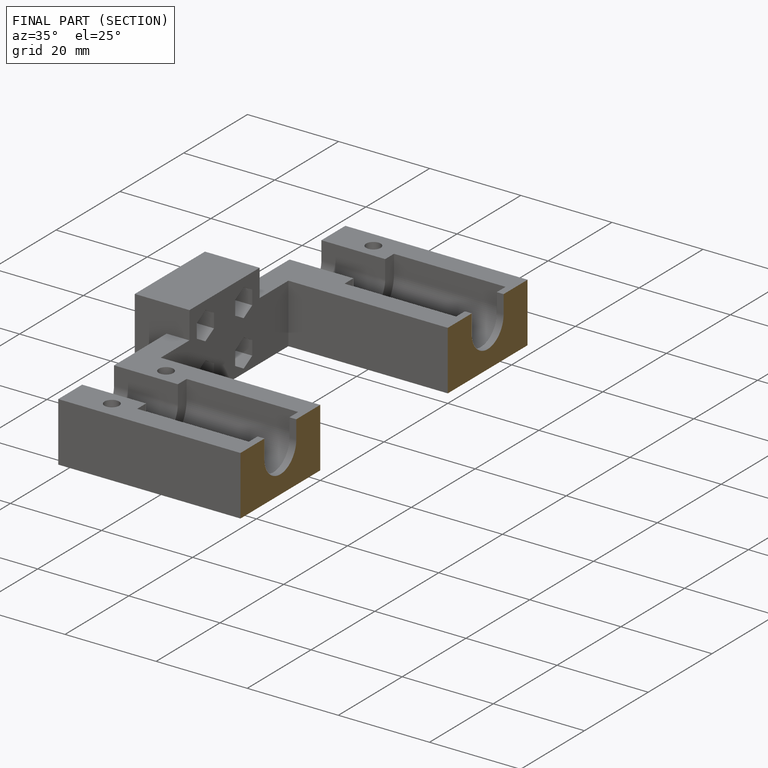
[diagram: finished part — half-section view (interior)]
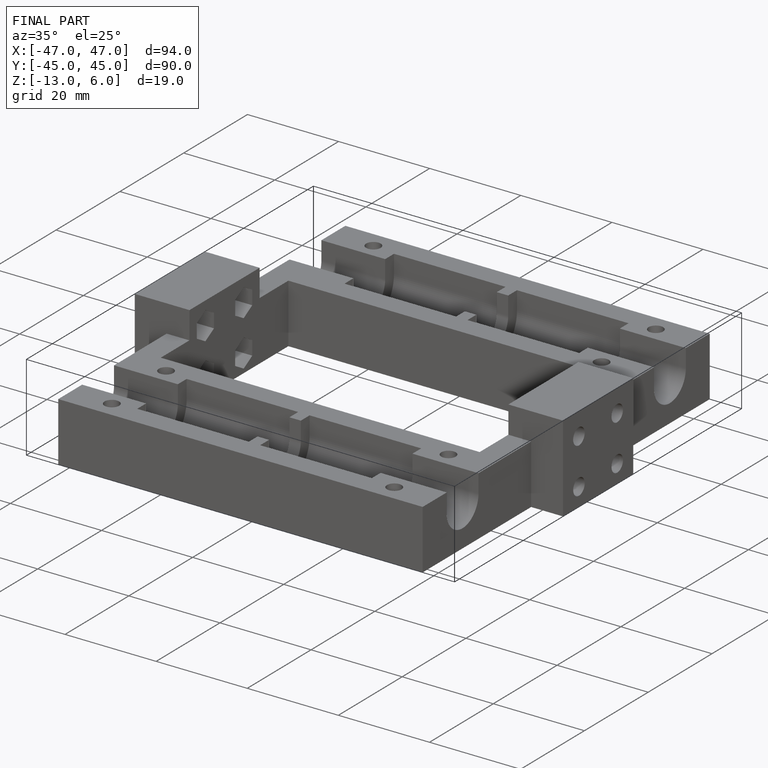
[diagram: finished part — iso view with bounding-box wireframe]
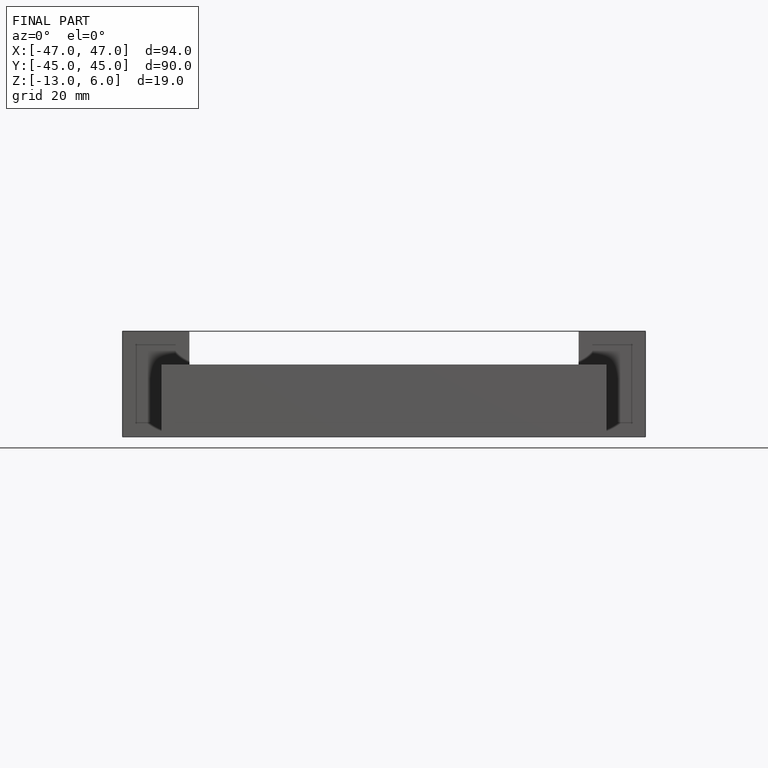
[diagram: finished part — front view with bounding-box wireframe]
